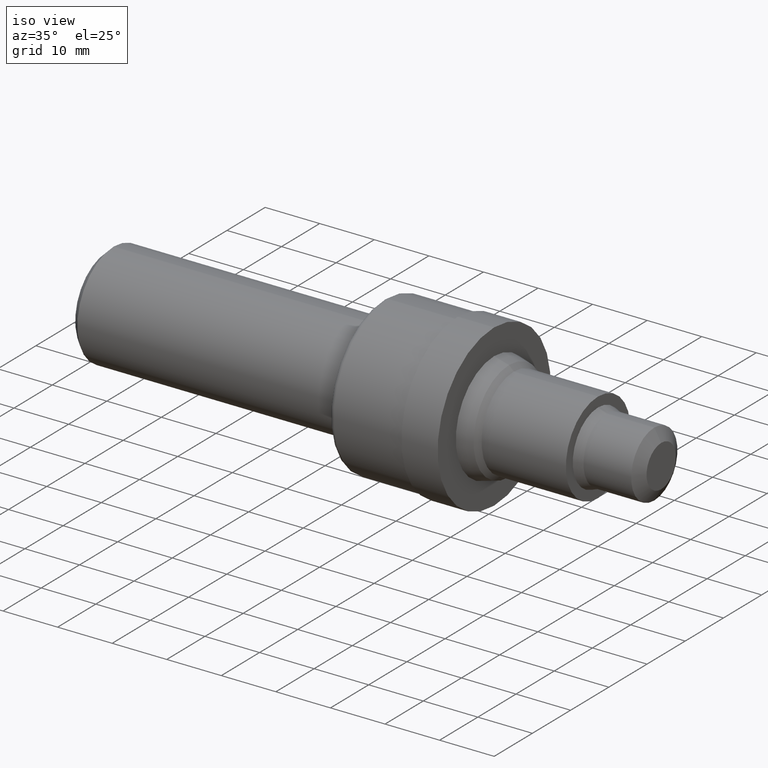
[diagram: clean part render]
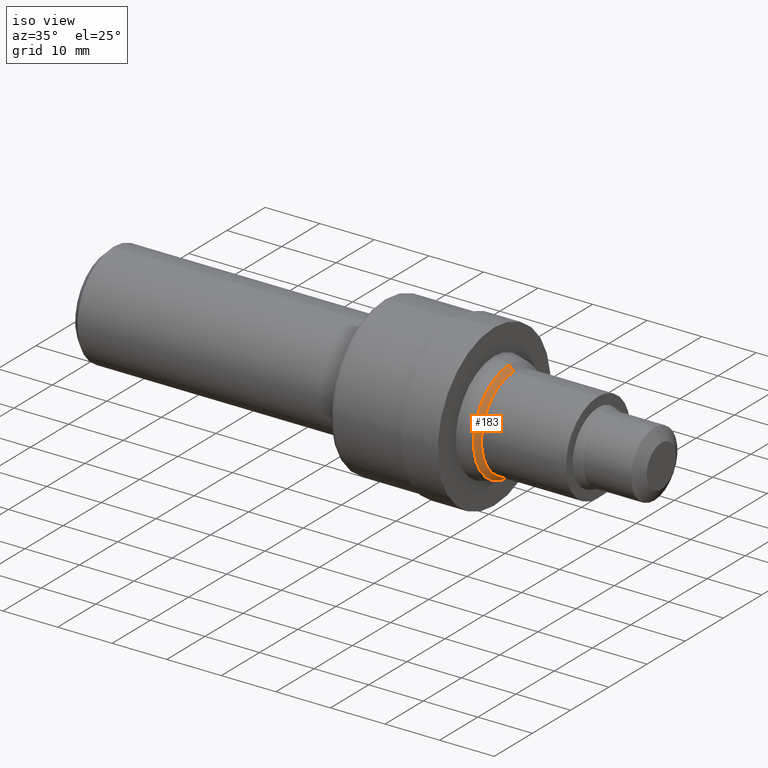
[diagram: same view with one face highlighted and labeled with its STEP entity id]
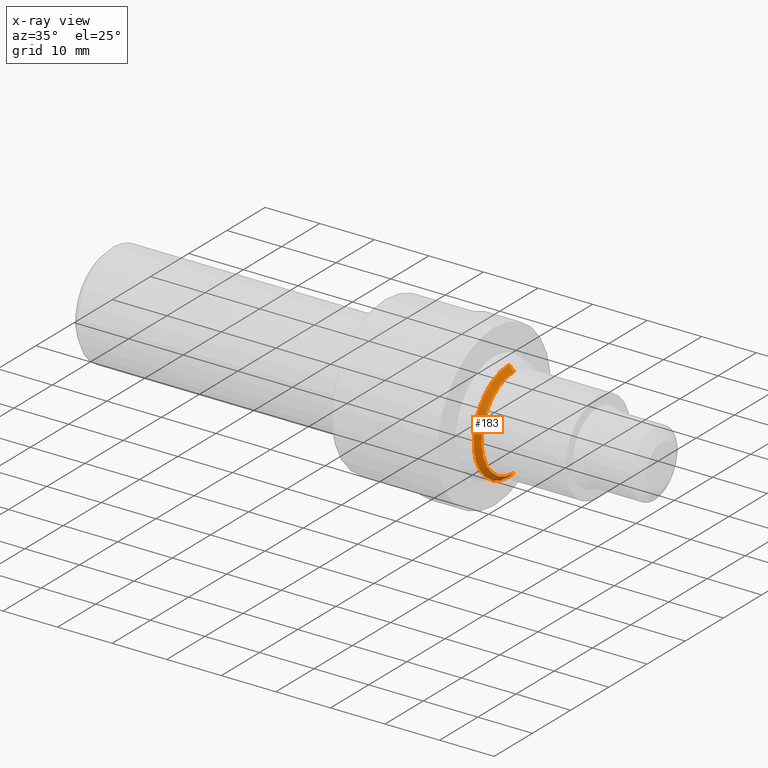
[diagram: x-ray of the same camera — body ghosted, the highlighted face saturated]
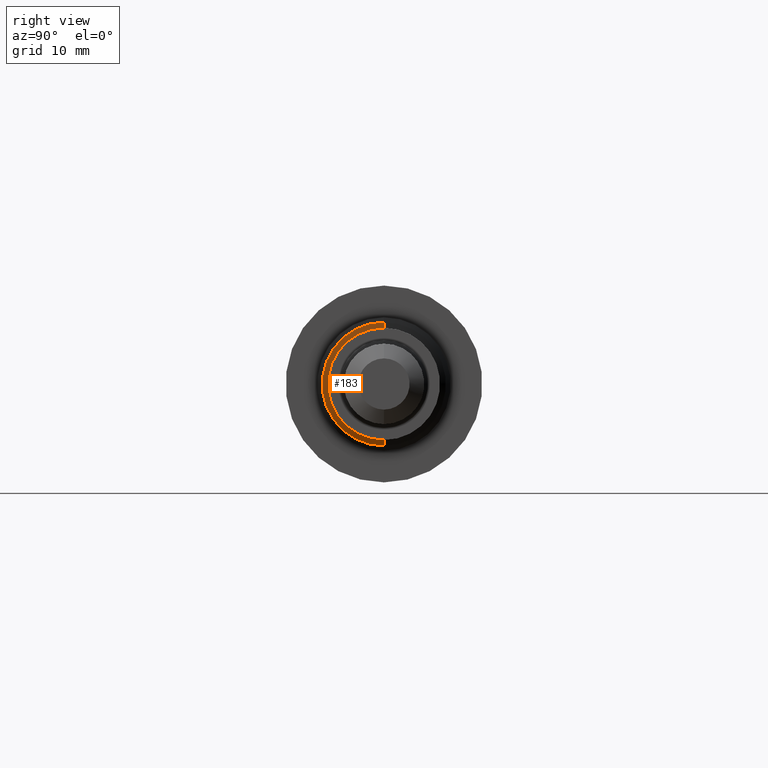
[diagram: same view with one face highlighted and labeled with its STEP entity id]
A machine part, iso view. The second image highlights one B-rep face of the part: STEP entity #183.
The next image is the same camera in x-ray: the body ghosted, the highlighted face saturated — about 0% of this face is hidden behind the body in this view.
A second angle (right view) of the same face is appended — the face is thin or edge-on in the first view.
In plain terms, the highlighted conical surface has half-angle 45 deg.
Its self-contained STEP definition (entity closure, byte-faithful):
#9 = DIRECTION ( 'NONE',  ( 0.0000000000000000000, 0.0000000000000000000, 1.000000000000000000 ) ) ;
#15 = ORIENTED_EDGE ( 'NONE', *, *, #222, .T. ) ;
#16 = ORIENTED_EDGE ( 'NONE', *, *, #610, .F. ) ;
#20 = AXIS2_PLACEMENT_3D ( 'NONE', #474, #368, #489 ) ;
#21 = ORIENTED_EDGE ( 'NONE', *, *, #470, .T. ) ;
#46 = EDGE_CURVE ( 'NONE', #721, #394, #621, .T. ) ;
#54 = CARTESIAN_POINT ( 'NONE',  ( 2.935811487217439009, 4.059704139173475521E-17, -0.3314999999999999059 ) ) ;
#116 = AXIS2_PLACEMENT_3D ( 'NONE', #516, #396, #9 ) ;
#156 = CARTESIAN_POINT ( 'NONE',  ( 2.935811487217439009, 0.0000000000000000000, 0.3314999999999999059 ) ) ;
#173 = VERTEX_POINT ( 'NONE', #260 ) ;
#183 = ADVANCED_FACE ( 'NONE', ( #271 ), #226, .T. ) ;
#192 = DIRECTION ( 'NONE',  ( 0.0000000000000000000, 0.0000000000000000000, 1.000000000000000000 ) ) ;
#204 = CIRCLE ( 'NONE', #20, 0.3653114872174386685 ) ;
#220 = DIRECTION ( 'NONE',  ( -0.7071067811865482389, 0.0000000000000000000, 0.7071067811865467956 ) ) ;
#222 = EDGE_CURVE ( 'NONE', #721, #819, #324, .T. ) ;
#225 = EDGE_LOOP ( 'NONE', ( #686, #15, #21, #16 ) ) ;
#226 = CONICAL_SURFACE ( 'NONE', #810, 0.3314999999999999059, 0.7853981633974472798 ) ;
#260 = CARTESIAN_POINT ( 'NONE',  ( 2.902000000000000135, 0.0000000000000000000, 0.3653114872174386685 ) ) ;
#271 = FACE_OUTER_BOUND ( 'NONE', #225, .T. ) ;
#298 = CARTESIAN_POINT ( 'NONE',  ( 2.935811487217439009, 0.0000000000000000000, 0.0000000000000000000 ) ) ;
#306 = VECTOR ( 'NONE', #437, 39.37007874015748143 ) ;
#311 = CARTESIAN_POINT ( 'NONE',  ( 2.935811487217439009, 0.0000000000000000000, 0.3314999999999999059 ) ) ;
#324 = CIRCLE ( 'NONE', #116, 0.3314999999999999059 ) ;
#368 = DIRECTION ( 'NONE',  ( -1.000000000000000000, -0.0000000000000000000, -0.0000000000000000000 ) ) ;
#394 = VERTEX_POINT ( 'NONE', #625 ) ;
#396 = DIRECTION ( 'NONE',  ( -1.000000000000000000, -0.0000000000000000000, -0.0000000000000000000 ) ) ;
#437 = DIRECTION ( 'NONE',  ( -0.7071067811865482389, 8.659560562354924230E-17, -0.7071067811865467956 ) ) ;
#447 = VECTOR ( 'NONE', #220, 39.37007874015748143 ) ;
#470 = EDGE_CURVE ( 'NONE', #819, #173, #619, .T. ) ;
#474 = CARTESIAN_POINT ( 'NONE',  ( 2.902000000000000135, 0.0000000000000000000, 0.0000000000000000000 ) ) ;
#489 = DIRECTION ( 'NONE',  ( 0.0000000000000000000, 0.0000000000000000000, 1.000000000000000000 ) ) ;
#516 = CARTESIAN_POINT ( 'NONE',  ( 2.935811487217439009, 0.0000000000000000000, 0.0000000000000000000 ) ) ;
#580 = DIRECTION ( 'NONE',  ( -1.000000000000000000, -0.0000000000000000000, -0.0000000000000000000 ) ) ;
#610 = EDGE_CURVE ( 'NONE', #394, #173, #204, .T. ) ;
#619 = LINE ( 'NONE', #156, #447 ) ;
#621 = LINE ( 'NONE', #54, #306 ) ;
#625 = CARTESIAN_POINT ( 'NONE',  ( 2.902000000000000135, 4.650972720382196624E-17, -0.3653114872174386685 ) ) ;
#686 = ORIENTED_EDGE ( 'NONE', *, *, #46, .F. ) ;
#699 = CARTESIAN_POINT ( 'NONE',  ( 2.935811487217439009, 4.266739787149714944E-17, -0.3314999999999999059 ) ) ;
#721 = VERTEX_POINT ( 'NONE', #699 ) ;
#810 = AXIS2_PLACEMENT_3D ( 'NONE', #298, #580, #192 ) ;
#819 = VERTEX_POINT ( 'NONE', #311 ) ;